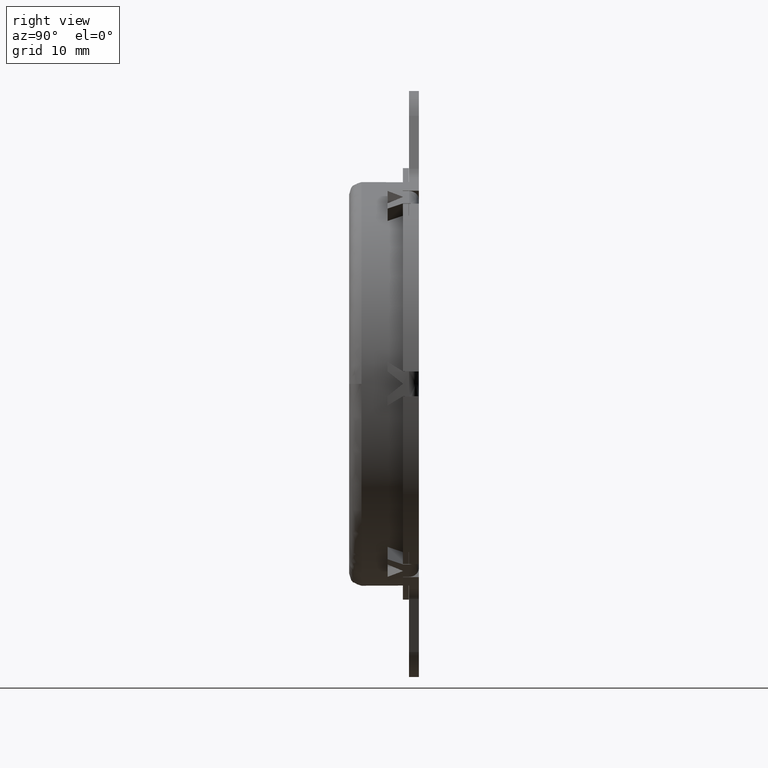
[diagram: clean part render]
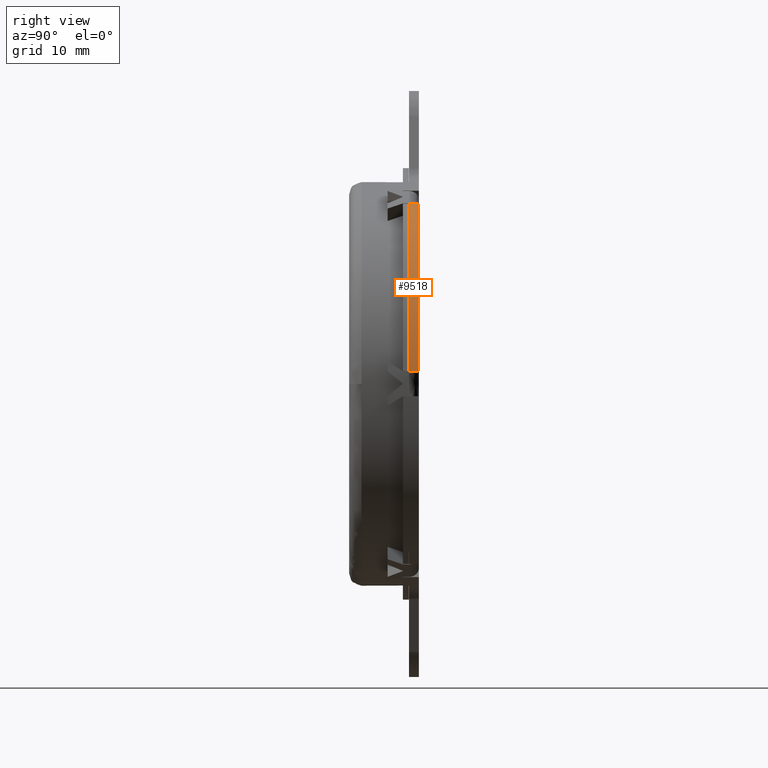
[diagram: same view with one face highlighted and labeled with its STEP entity id]
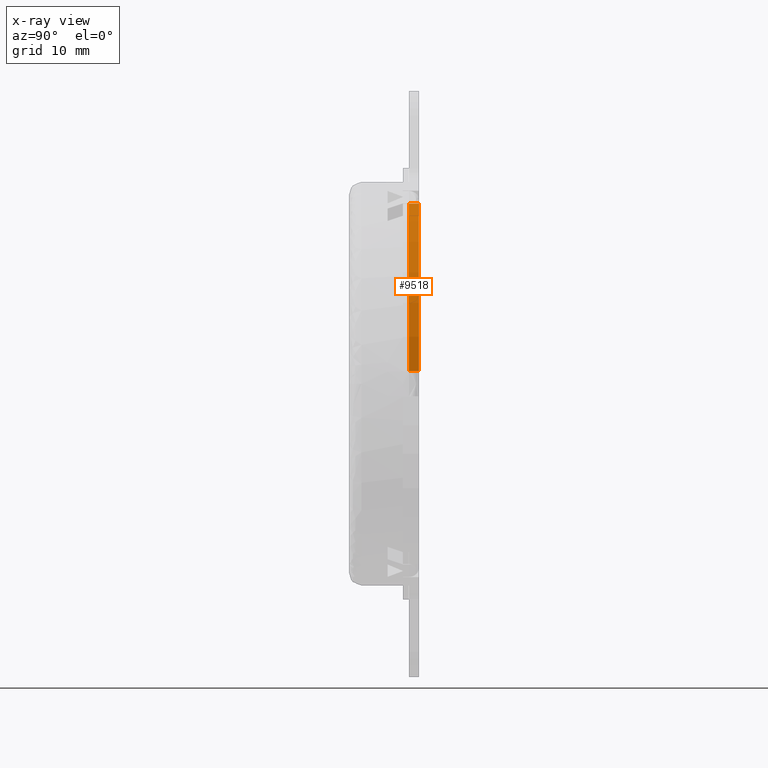
[diagram: x-ray of the same camera — body ghosted, the highlighted face saturated]
A machine part, right view. The second image highlights one B-rep face of the part: STEP entity #9518.
The next image is the same camera in x-ray: the body ghosted, the highlighted face saturated — about 0% of this face is hidden behind the body in this view.
In plain terms, the highlighted face is a freeform B-spline surface patch.
Its self-contained STEP definition (entity closure, byte-faithful):
#5836=CARTESIAN_POINT('',(19.287124946802098,-1.599999999999935,29.206280339790698));
#5837=VERTEX_POINT('',#5836);
#5844=CARTESIAN_POINT('',(34.936943197709802,-1.600000000000045,2.100000000000000));
#5845=VERTEX_POINT('',#5844);
#5851=CARTESIAN_POINT('',(34.936943197709802,-1.600000000000045,2.099999999999984));
#5852=CARTESIAN_POINT('',(33.887166029352478,-1.600000000000045,19.564764429120249));
#5853=CARTESIAN_POINT('',(19.287124946802098,-1.599999999999935,29.206280339790698));
#5861=(BOUNDED_CURVE()B_SPLINE_CURVE(2,(#5851,#5852,#5853),.UNSPECIFIED.,.F.,.U.)CURVE()GEOMETRIC_REPRESENTATION_ITEM()QUASI_UNIFORM_CURVE()RATIONAL_B_SPLINE_CURVE((1.0,0.894465152565445,1.0))REPRESENTATION_ITEM(''));
#5862=EDGE_CURVE('',#5845,#5837,#5861,.T.);
#9220=CARTESIAN_POINT('',(19.287124946802098,0.0,29.206280339790698));
#9221=VERTEX_POINT('',#9220);
#9227=CARTESIAN_POINT('',(34.936943197709802,0.0,2.099999999999885));
#9228=VERTEX_POINT('',#9227);
#9229=CARTESIAN_POINT('',(34.936943197709802,0.0,2.099999999999891));
#9230=CARTESIAN_POINT('',(33.887166029352528,0.0,19.564764429120228));
#9231=CARTESIAN_POINT('',(19.287124946802120,0.0,29.206280339790681));
#9239=(BOUNDED_CURVE()B_SPLINE_CURVE(2,(#9229,#9230,#9231),.UNSPECIFIED.,.F.,.U.)CURVE()GEOMETRIC_REPRESENTATION_ITEM()QUASI_UNIFORM_CURVE()RATIONAL_B_SPLINE_CURVE((1.0,0.894465152565445,1.0))REPRESENTATION_ITEM(''));
#9240=EDGE_CURVE('',#9228,#9221,#9239,.T.);
#9473=CARTESIAN_POINT('',(19.287124946802098,-1.599999999999935,29.206280339790698));
#9474=CARTESIAN_POINT('',(19.287124946802098,0.0,29.206280339790698));
#9475=QUASI_UNIFORM_CURVE('',1,(#9473,#9474),.UNSPECIFIED.,.F.,.U.);
#9476=EDGE_CURVE('',#5837,#9221,#9475,.T.);
#9487=CARTESIAN_POINT('',(34.936943197709802,-1.600000000000045,2.100000000000000));
#9488=CARTESIAN_POINT('',(34.936943197709802,0.0,2.099999999999885));
#9489=QUASI_UNIFORM_CURVE('',1,(#9487,#9488),.UNSPECIFIED.,.F.,.U.);
#9490=EDGE_CURVE('',#5845,#9228,#9489,.T.);
#9498=CARTESIAN_POINT('',(34.979942771292087,-1.640000000000046,1.184737826327069));
#9499=CARTESIAN_POINT('',(34.979942771292087,0.041000000000001,1.184737826327069));
#9500=CARTESIAN_POINT('',(34.334321979744558,-1.640000000000046,20.246996022558847));
#9501=CARTESIAN_POINT('',(34.334321979744558,0.041000000000001,20.246996022558847));
#9502=CARTESIAN_POINT('',(17.965552499828561,-1.640000000000047,30.037292211114892));
#9503=CARTESIAN_POINT('',(17.965552499828561,0.041000000000001,30.037292211114892));
#9511=(BOUNDED_SURFACE()B_SPLINE_SURFACE(1,2,((#9498,#9500,#9502),(#9499,#9501,#9503)),.UNSPECIFIED.,.F.,.F.,.U.)B_SPLINE_SURFACE_WITH_KNOTS((2,2),(3,3),(0.0,1.0),(0.0,35.670034568786143),.UNSPECIFIED.)GEOMETRIC_REPRESENTATION_ITEM()RATIONAL_B_SPLINE_SURFACE(((1.0,0.876475504957944,0.996343340995524),(1.0,0.876475504957944,0.996343340995524)))REPRESENTATION_ITEM('')SURFACE());
#9512=ORIENTED_EDGE('',*,*,#5862,.F.);
#9513=ORIENTED_EDGE('',*,*,#9490,.T.);
#9514=ORIENTED_EDGE('',*,*,#9240,.T.);
#9515=ORIENTED_EDGE('',*,*,#9476,.F.);
#9516=EDGE_LOOP('',(#9512,#9513,#9514,#9515));
#9517=FACE_OUTER_BOUND('',#9516,.T.);
#9518=ADVANCED_FACE('',(#9517),#9511,.T.);